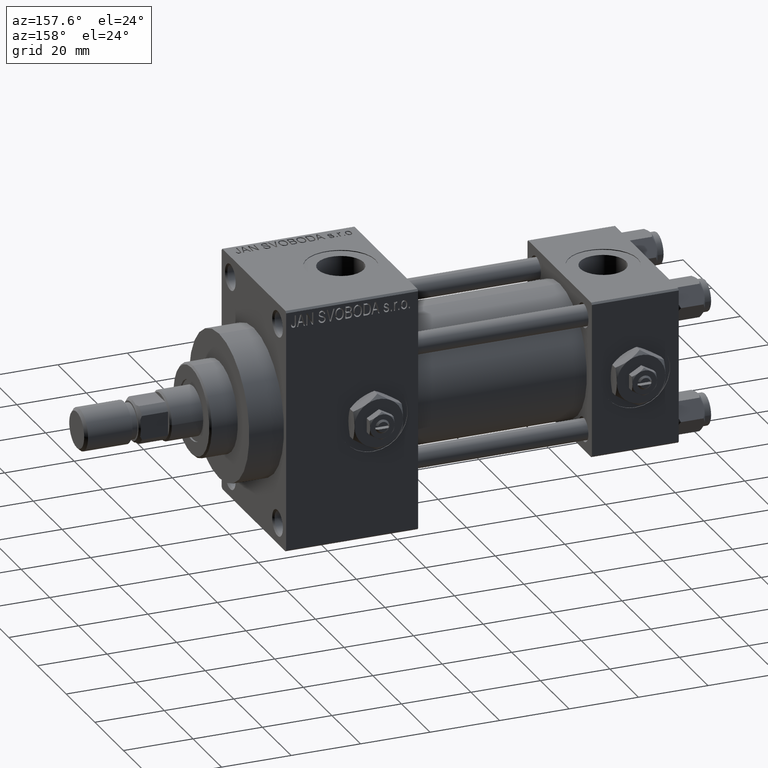
[diagram: clean part render]
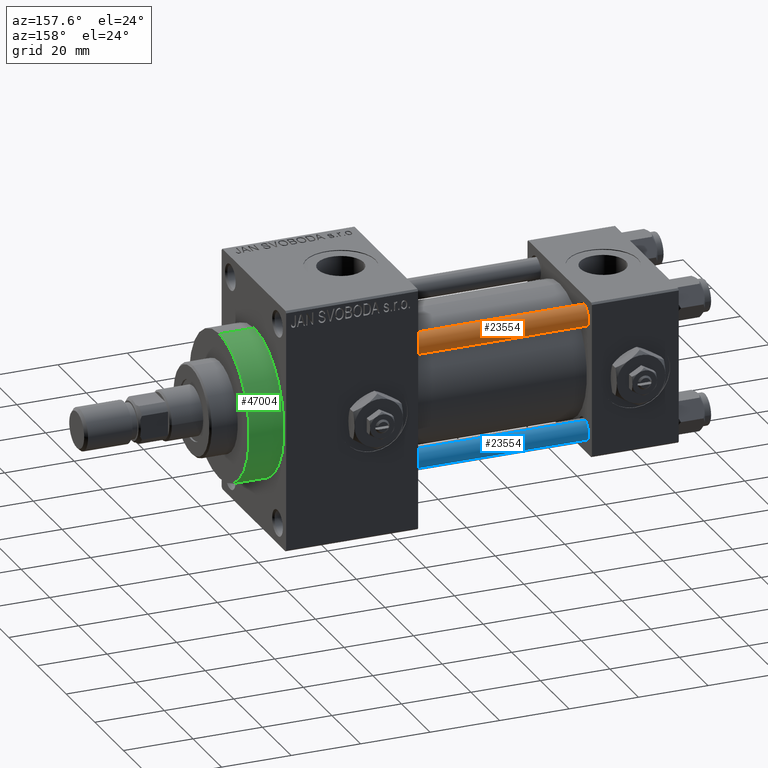
[diagram: same view with three faces highlighted in distinct colors, each labeled with its STEP entity id]
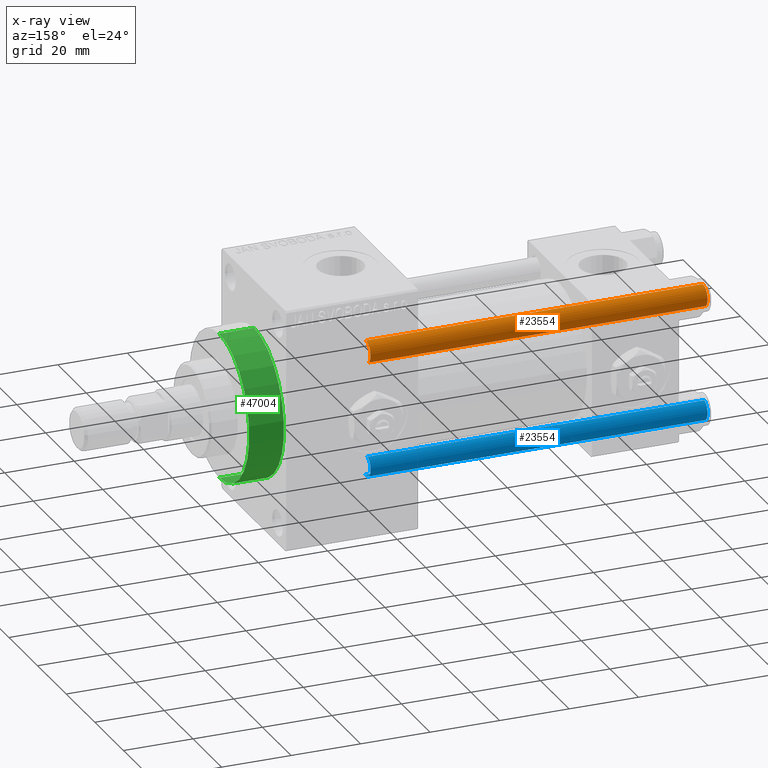
[diagram: x-ray of the same camera — body ghosted, the three highlighted faces saturated]
A machine part, auxiliary view with three faces highlighted in distinct colors.
The next image is the same camera in x-ray (body ghosted, the three faces saturated) — at least one of them is partly hidden behind the body in this view.
Their STEP definitions:

[orange] entity #23554 — the highlighted cylindrical surface (edge-blend (fillet) strip) has radius 3 mm, axis along (-1, -0, 0).
#554 = CARTESIAN_POINT ( 'NONE',  ( 3.000000000000000444, 3.673940397442060361E-16, 0.5000000000000281997 ) ) ;
#1406 = VERTEX_POINT ( 'NONE', #1863 ) ;
#1863 = CARTESIAN_POINT ( 'NONE',  ( -3.000000000000000444, 0.000000000000000000, 97.50000000000001421 ) ) ;
#3161 = CARTESIAN_POINT ( 'NONE',  ( 3.000000000000000444, 3.673940397442060361E-16, 98.00000000000000000 ) ) ;
#3560 = FACE_OUTER_BOUND ( 'NONE', #34129, .T. ) ;
#3612 = VECTOR ( 'NONE', #46284, 1000.000000000000000 ) ;
#3641 = CIRCLE ( 'NONE', #33250, 3.000000000000000444 ) ;
#3673 = CARTESIAN_POINT ( 'NONE',  ( -3.000000000000000444, 0.000000000000000000, 98.00000000000000000 ) ) ;
#4769 = ORIENTED_EDGE ( 'NONE', *, *, #20229, .T. ) ;
#4870 = DIRECTION ( 'NONE',  ( -0.000000000000000000, -0.000000000000000000, 1.000000000000000000 ) ) ;
#5098 = AXIS2_PLACEMENT_3D ( 'NONE', #45428, #10846, #44666 ) ;
#10826 = VERTEX_POINT ( 'NONE', #30541 ) ;
#10846 = DIRECTION ( 'NONE',  ( -0.000000000000000000, -0.000000000000000000, -1.000000000000000000 ) ) ;
#13013 = VERTEX_POINT ( 'NONE', #44589 ) ;
#14081 = EDGE_CURVE ( 'NONE', #1406, #13013, #30465, .T. ) ;
#16682 = DIRECTION ( 'NONE',  ( 1.000000000000000000, 0.000000000000000000, 0.000000000000000000 ) ) ;
#19683 = CARTESIAN_POINT ( 'NONE',  ( 0.000000000000000000, 0.000000000000000000, 97.50000000000001421 ) ) ;
#19815 = ORIENTED_EDGE ( 'NONE', *, *, #14081, .F. ) ;
#20035 = ORIENTED_EDGE ( 'NONE', *, *, #32309, .T. ) ;
#20229 = EDGE_CURVE ( 'NONE', #49155, #13013, #47029, .T. ) ;
#22457 = LINE ( 'NONE', #3161, #23818 ) ;
#23554 = ADVANCED_FACE ( 'NONE', ( #3560 ), #25851, .T. ) ;
#23818 = VECTOR ( 'NONE', #37736, 1000.000000000000000 ) ;
#25485 = ORIENTED_EDGE ( 'NONE', *, *, #36378, .T. ) ;
#25851 = CYLINDRICAL_SURFACE ( 'NONE', #5098, 3.000000000000000444 ) ;
#30465 = LINE ( 'NONE', #3673, #3612 ) ;
#30541 = CARTESIAN_POINT ( 'NONE',  ( 3.000000000000000444, 3.673940397442060361E-16, 97.50000000000001421 ) ) ;
#31693 = DIRECTION ( 'NONE',  ( 0.000000000000000000, 0.000000000000000000, -1.000000000000000000 ) ) ;
#32309 = EDGE_CURVE ( 'NONE', #1406, #10826, #3641, .T. ) ;
#33250 = AXIS2_PLACEMENT_3D ( 'NONE', #19683, #31693, #16682 ) ;
#34129 = EDGE_LOOP ( 'NONE', ( #20035, #25485, #4769, #19815 ) ) ;
#34682 = CARTESIAN_POINT ( 'NONE',  ( 0.000000000000000000, 0.000000000000000000, 0.5000000000000281997 ) ) ;
#36378 = EDGE_CURVE ( 'NONE', #10826, #49155, #22457, .T. ) ;
#37418 = AXIS2_PLACEMENT_3D ( 'NONE', #34682, #4870, #46732 ) ;
#37736 = DIRECTION ( 'NONE',  ( -0.000000000000000000, -0.000000000000000000, -1.000000000000000000 ) ) ;
#44589 = CARTESIAN_POINT ( 'NONE',  ( -3.000000000000000444, 0.000000000000000000, 0.5000000000000281997 ) ) ;
#44666 = DIRECTION ( 'NONE',  ( -1.000000000000000000, 0.000000000000000000, 0.000000000000000000 ) ) ;
#45428 = CARTESIAN_POINT ( 'NONE',  ( 0.000000000000000000, 0.000000000000000000, 98.00000000000000000 ) ) ;
#46284 = DIRECTION ( 'NONE',  ( -0.000000000000000000, -0.000000000000000000, -1.000000000000000000 ) ) ;
#46732 = DIRECTION ( 'NONE',  ( 1.000000000000000000, 0.000000000000000000, 0.000000000000000000 ) ) ;
#47029 = CIRCLE ( 'NONE', #37418, 3.000000000000000444 ) ;
#49155 = VERTEX_POINT ( 'NONE', #554 ) ;

[blue] entity #23554 — the highlighted cylindrical surface (edge-blend (fillet) strip) has radius 3 mm, axis along (1, -0, 0).
#554 = CARTESIAN_POINT ( 'NONE',  ( 3.000000000000000444, 3.673940397442060361E-16, 0.5000000000000281997 ) ) ;
#1406 = VERTEX_POINT ( 'NONE', #1863 ) ;
#1863 = CARTESIAN_POINT ( 'NONE',  ( -3.000000000000000444, 0.000000000000000000, 97.50000000000001421 ) ) ;
#3161 = CARTESIAN_POINT ( 'NONE',  ( 3.000000000000000444, 3.673940397442060361E-16, 98.00000000000000000 ) ) ;
#3560 = FACE_OUTER_BOUND ( 'NONE', #34129, .T. ) ;
#3612 = VECTOR ( 'NONE', #46284, 1000.000000000000000 ) ;
#3641 = CIRCLE ( 'NONE', #33250, 3.000000000000000444 ) ;
#3673 = CARTESIAN_POINT ( 'NONE',  ( -3.000000000000000444, 0.000000000000000000, 98.00000000000000000 ) ) ;
#4769 = ORIENTED_EDGE ( 'NONE', *, *, #20229, .T. ) ;
#4870 = DIRECTION ( 'NONE',  ( -0.000000000000000000, -0.000000000000000000, 1.000000000000000000 ) ) ;
#5098 = AXIS2_PLACEMENT_3D ( 'NONE', #45428, #10846, #44666 ) ;
#10826 = VERTEX_POINT ( 'NONE', #30541 ) ;
#10846 = DIRECTION ( 'NONE',  ( -0.000000000000000000, -0.000000000000000000, -1.000000000000000000 ) ) ;
#13013 = VERTEX_POINT ( 'NONE', #44589 ) ;
#14081 = EDGE_CURVE ( 'NONE', #1406, #13013, #30465, .T. ) ;
#16682 = DIRECTION ( 'NONE',  ( 1.000000000000000000, 0.000000000000000000, 0.000000000000000000 ) ) ;
#19683 = CARTESIAN_POINT ( 'NONE',  ( 0.000000000000000000, 0.000000000000000000, 97.50000000000001421 ) ) ;
#19815 = ORIENTED_EDGE ( 'NONE', *, *, #14081, .F. ) ;
#20035 = ORIENTED_EDGE ( 'NONE', *, *, #32309, .T. ) ;
#20229 = EDGE_CURVE ( 'NONE', #49155, #13013, #47029, .T. ) ;
#22457 = LINE ( 'NONE', #3161, #23818 ) ;
#23554 = ADVANCED_FACE ( 'NONE', ( #3560 ), #25851, .T. ) ;
#23818 = VECTOR ( 'NONE', #37736, 1000.000000000000000 ) ;
#25485 = ORIENTED_EDGE ( 'NONE', *, *, #36378, .T. ) ;
#25851 = CYLINDRICAL_SURFACE ( 'NONE', #5098, 3.000000000000000444 ) ;
#30465 = LINE ( 'NONE', #3673, #3612 ) ;
#30541 = CARTESIAN_POINT ( 'NONE',  ( 3.000000000000000444, 3.673940397442060361E-16, 97.50000000000001421 ) ) ;
#31693 = DIRECTION ( 'NONE',  ( 0.000000000000000000, 0.000000000000000000, -1.000000000000000000 ) ) ;
#32309 = EDGE_CURVE ( 'NONE', #1406, #10826, #3641, .T. ) ;
#33250 = AXIS2_PLACEMENT_3D ( 'NONE', #19683, #31693, #16682 ) ;
#34129 = EDGE_LOOP ( 'NONE', ( #20035, #25485, #4769, #19815 ) ) ;
#34682 = CARTESIAN_POINT ( 'NONE',  ( 0.000000000000000000, 0.000000000000000000, 0.5000000000000281997 ) ) ;
#36378 = EDGE_CURVE ( 'NONE', #10826, #49155, #22457, .T. ) ;
#37418 = AXIS2_PLACEMENT_3D ( 'NONE', #34682, #4870, #46732 ) ;
#37736 = DIRECTION ( 'NONE',  ( -0.000000000000000000, -0.000000000000000000, -1.000000000000000000 ) ) ;
#44589 = CARTESIAN_POINT ( 'NONE',  ( -3.000000000000000444, 0.000000000000000000, 0.5000000000000281997 ) ) ;
#44666 = DIRECTION ( 'NONE',  ( -1.000000000000000000, 0.000000000000000000, 0.000000000000000000 ) ) ;
#45428 = CARTESIAN_POINT ( 'NONE',  ( 0.000000000000000000, 0.000000000000000000, 98.00000000000000000 ) ) ;
#46284 = DIRECTION ( 'NONE',  ( -0.000000000000000000, -0.000000000000000000, -1.000000000000000000 ) ) ;
#46732 = DIRECTION ( 'NONE',  ( 1.000000000000000000, 0.000000000000000000, 0.000000000000000000 ) ) ;
#47029 = CIRCLE ( 'NONE', #37418, 3.000000000000000444 ) ;
#49155 = VERTEX_POINT ( 'NONE', #554 ) ;

[green] entity #47004 — the highlighted cylindrical surface (partial cylindrical patch) has radius 21 mm, axis along (-1, -0, -0).
#2237 = CARTESIAN_POINT ( 'NONE',  ( 123.0000000000000142, 0.000000000000000000, 0.000000000000000000 ) ) ;
#3545 = VERTEX_POINT ( 'NONE', #20601 ) ;
#5315 = DIRECTION ( 'NONE',  ( -1.000000000000000000, -0.000000000000000000, -0.000000000000000000 ) ) ;
#6118 = VECTOR ( 'NONE', #48800, 1000.000000000000000 ) ;
#6192 = EDGE_CURVE ( 'NONE', #3545, #19387, #47428, .T. ) ;
#7517 = AXIS2_PLACEMENT_3D ( 'NONE', #9797, #20153, #16410 ) ;
#9763 = FACE_OUTER_BOUND ( 'NONE', #37058, .T. ) ;
#9797 = CARTESIAN_POINT ( 'NONE',  ( 113.0000000000000142, 0.000000000000000000, 0.000000000000000000 ) ) ;
#10709 = CARTESIAN_POINT ( 'NONE',  ( 123.0000000000000142, 0.000000000000000000, 0.000000000000000000 ) ) ;
#11199 = LINE ( 'NONE', #44522, #6118 ) ;
#11470 = VECTOR ( 'NONE', #5315, 1000.000000000000000 ) ;
#11772 = CARTESIAN_POINT ( 'NONE',  ( 113.0000000000000142, 0.000000000000000000, 21.00000000000000000 ) ) ;
#13036 = DIRECTION ( 'NONE',  ( 0.000000000000000000, 0.000000000000000000, 1.000000000000000000 ) ) ;
#15284 = AXIS2_PLACEMENT_3D ( 'NONE', #2237, #32061, #13036 ) ;
#16410 = DIRECTION ( 'NONE',  ( 0.000000000000000000, 0.000000000000000000, -1.000000000000000000 ) ) ;
#17908 = CARTESIAN_POINT ( 'NONE',  ( 113.0000000000000142, 2.571758278209441661E-15, -21.00000000000000000 ) ) ;
#19387 = VERTEX_POINT ( 'NONE', #11772 ) ;
#20153 = DIRECTION ( 'NONE',  ( 1.000000000000000000, 0.000000000000000000, 0.000000000000000000 ) ) ;
#20601 = CARTESIAN_POINT ( 'NONE',  ( 123.0000000000000142, 0.000000000000000000, 21.00000000000000000 ) ) ;
#23763 = ORIENTED_EDGE ( 'NONE', *, *, #6192, .F. ) ;
#24319 = VERTEX_POINT ( 'NONE', #47772 ) ;
#24567 = EDGE_CURVE ( 'NONE', #36709, #19387, #29096, .T. ) ;
#26123 = ORIENTED_EDGE ( 'NONE', *, *, #33605, .T. ) ;
#28074 = ORIENTED_EDGE ( 'NONE', *, *, #24567, .T. ) ;
#29096 = CIRCLE ( 'NONE', #7517, 21.00000000000000000 ) ;
#29727 = DIRECTION ( 'NONE',  ( 1.000000000000000000, 0.000000000000000000, 0.000000000000000000 ) ) ;
#29764 = CIRCLE ( 'NONE', #32173, 21.00000000000000000 ) ;
#32061 = DIRECTION ( 'NONE',  ( -1.000000000000000000, -0.000000000000000000, -0.000000000000000000 ) ) ;
#32173 = AXIS2_PLACEMENT_3D ( 'NONE', #10709, #29727, #41017 ) ;
#33066 = ORIENTED_EDGE ( 'NONE', *, *, #49456, .F. ) ;
#33605 = EDGE_CURVE ( 'NONE', #24319, #36709, #11199, .T. ) ;
#35631 = CARTESIAN_POINT ( 'NONE',  ( 123.0000000000000142, 0.000000000000000000, 21.00000000000000000 ) ) ;
#36709 = VERTEX_POINT ( 'NONE', #17908 ) ;
#37058 = EDGE_LOOP ( 'NONE', ( #33066, #26123, #28074, #23763 ) ) ;
#40569 = CYLINDRICAL_SURFACE ( 'NONE', #15284, 21.00000000000000000 ) ;
#41017 = DIRECTION ( 'NONE',  ( 0.000000000000000000, 0.000000000000000000, -1.000000000000000000 ) ) ;
#44522 = CARTESIAN_POINT ( 'NONE',  ( 123.0000000000000142, 2.571758278209441661E-15, -21.00000000000000000 ) ) ;
#47004 = ADVANCED_FACE ( 'NONE', ( #9763 ), #40569, .T. ) ;
#47428 = LINE ( 'NONE', #35631, #11470 ) ;
#47772 = CARTESIAN_POINT ( 'NONE',  ( 123.0000000000000142, 2.571758278209441661E-15, -21.00000000000000000 ) ) ;
#48800 = DIRECTION ( 'NONE',  ( -1.000000000000000000, -0.000000000000000000, -0.000000000000000000 ) ) ;
#49456 = EDGE_CURVE ( 'NONE', #24319, #3545, #29764, .T. ) ;